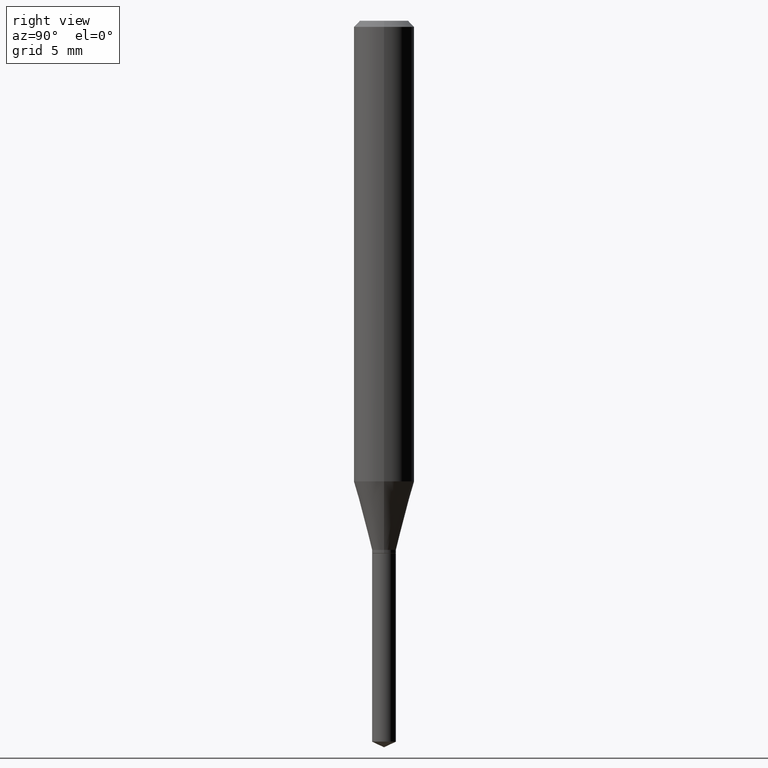
[diagram: clean part render]
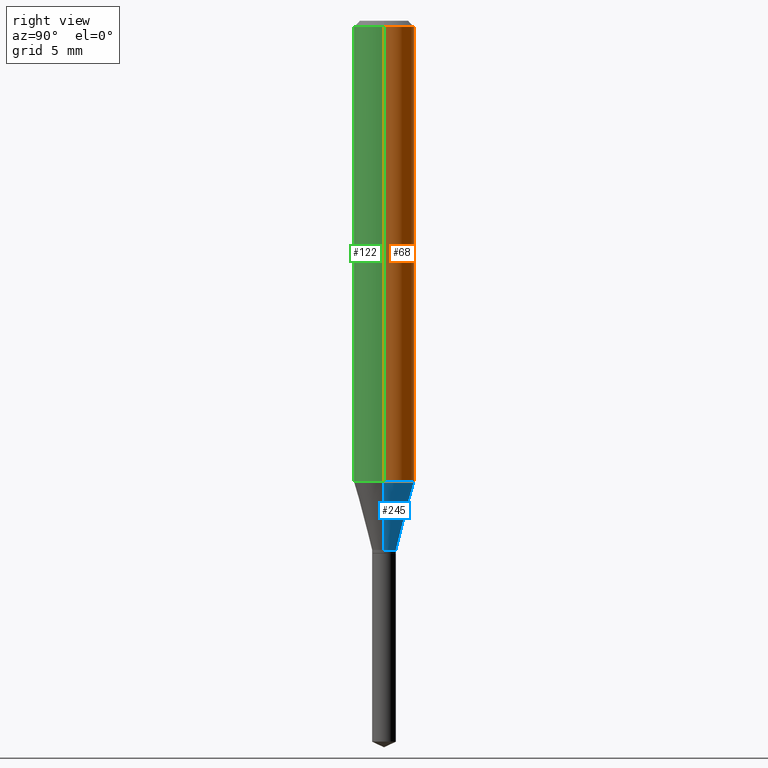
[diagram: same view with three faces highlighted in distinct colors, each labeled with its STEP entity id]
A machine part, right view with three faces highlighted in distinct colors.
Their STEP definitions:

[orange] entity #68 — the highlighted cylindrical surface (edge-blend (fillet) strip) has radius 1.5875 mm, axis along (-0, 0, 1).
#2 = CARTESIAN_POINT ( 'NONE',  ( -0.06250000000000012490, -2.876851681035814887E-15, -0.9511552743931396270 ) ) ;
#8 = VERTEX_POINT ( 'NONE', #2 ) ;
#11 = DIRECTION ( 'NONE',  ( -2.445468806185136597E-29, 3.491481338843145583E-15, 1.000000000000000000 ) ) ;
#13 = DIRECTION ( 'NONE',  ( 1.000000000000000000, -6.982962677686264344E-15, 0.000000000000000000 ) ) ;
#15 = LINE ( 'NONE', #278, #288 ) ;
#32 = DIRECTION ( 'NONE',  ( -2.445468806185136597E-29, 3.491481338843145583E-15, 1.000000000000000000 ) ) ;
#42 = DIRECTION ( 'NONE',  ( 1.000000000000000000, -6.982962677686266711E-15, 4.876176775795935793E-29 ) ) ;
#44 = CARTESIAN_POINT ( 'NONE',  ( -0.06250000000000001388, -1.238202993960645522E-15, -0.01250000000000008916 ) ) ;
#48 = CIRCLE ( 'NONE', #346, 0.06250000000000001388 ) ;
#58 = VERTEX_POINT ( 'NONE', #145 ) ;
#68 = ADVANCED_FACE ( 'NONE', ( #76 ), #227, .T. ) ;
#76 = FACE_OUTER_BOUND ( 'NONE', #284, .T. ) ;
#81 = CARTESIAN_POINT ( 'NONE',  ( 0.06250000000000012490, -3.757376058241271144E-15, -0.9511552743931396270 ) ) ;
#101 = ORIENTED_EDGE ( 'NONE', *, *, #417, .F. ) ;
#102 = DIRECTION ( 'NONE',  ( -2.445468806185136877E-29, 3.491481338843145188E-15, 1.000000000000000000 ) ) ;
#107 = EDGE_CURVE ( 'NONE', #480, #8, #212, .T. ) ;
#127 = CARTESIAN_POINT ( 'NONE',  ( 3.056836007731442729E-31, -4.364351673553962300E-17, -0.01250000000000008916 ) ) ;
#139 = ORIENTED_EDGE ( 'NONE', *, *, #107, .T. ) ;
#144 = DIRECTION ( 'NONE',  ( -2.445468806185136597E-29, 3.491481338843145583E-15, 1.000000000000000000 ) ) ;
#145 = CARTESIAN_POINT ( 'NONE',  ( 0.06250000000000001388, -4.800786840909313294E-16, -0.01250000000000008916 ) ) ;
#156 = AXIS2_PLACEMENT_3D ( 'NONE', #268, #11, #13 ) ;
#182 = AXIS2_PLACEMENT_3D ( 'NONE', #382, #32, #42 ) ;
#210 = VECTOR ( 'NONE', #102, 39.37007874015748143 ) ;
#212 = CIRCLE ( 'NONE', #156, 0.06250000000000012490 ) ;
#213 = VERTEX_POINT ( 'NONE', #44 ) ;
#220 = DIRECTION ( 'NONE',  ( 1.000000000000000000, -6.982962677686265922E-15, 0.000000000000000000 ) ) ;
#227 = CYLINDRICAL_SURFACE ( 'NONE', #182, 0.06250000000000006939 ) ;
#238 = EDGE_CURVE ( 'NONE', #8, #213, #15, .T. ) ;
#268 = CARTESIAN_POINT ( 'NONE',  ( 2.326020553366887075E-29, -3.320940890885878686E-15, -0.9511552743931396270 ) ) ;
#278 = CARTESIAN_POINT ( 'NONE',  ( -0.06250000000000006939, 4.440892098500631092E-16, -3.074334431409319267E-30 ) ) ;
#284 = EDGE_LOOP ( 'NONE', ( #139, #483, #435, #101 ) ) ;
#288 = VECTOR ( 'NONE', #394, 39.37007874015748143 ) ;
#346 = AXIS2_PLACEMENT_3D ( 'NONE', #127, #144, #220 ) ;
#382 = CARTESIAN_POINT ( 'NONE',  ( 0.000000000000000000, 0.000000000000000000, 0.000000000000000000 ) ) ;
#394 = DIRECTION ( 'NONE',  ( -2.445468806185136877E-29, 3.491481338843145188E-15, 1.000000000000000000 ) ) ;
#403 = LINE ( 'NONE', #445, #210 ) ;
#417 = EDGE_CURVE ( 'NONE', #480, #58, #403, .T. ) ;
#435 = ORIENTED_EDGE ( 'NONE', *, *, #455, .F. ) ;
#445 = CARTESIAN_POINT ( 'NONE',  ( 0.06250000000000006939, -4.364351673553921624E-16, 3.047610484872463374E-30 ) ) ;
#455 = EDGE_CURVE ( 'NONE', #58, #213, #48, .T. ) ;
#480 = VERTEX_POINT ( 'NONE', #81 ) ;
#483 = ORIENTED_EDGE ( 'NONE', *, *, #238, .T. ) ;

[blue] entity #245 — the highlighted conical surface has half-angle 15 deg.
#2 = CARTESIAN_POINT ( 'NONE',  ( -0.06250000000000012490, -2.876851681035814887E-15, -0.9511552743931396270 ) ) ;
#8 = VERTEX_POINT ( 'NONE', #2 ) ;
#9 = DIRECTION ( 'NONE',  ( -2.445468806185136597E-29, 3.491481338843145583E-15, 1.000000000000000000 ) ) ;
#11 = DIRECTION ( 'NONE',  ( -2.445468806185136597E-29, 3.491481338843145583E-15, 1.000000000000000000 ) ) ;
#13 = DIRECTION ( 'NONE',  ( 1.000000000000000000, -6.982962677686264344E-15, 0.000000000000000000 ) ) ;
#16 = DIRECTION ( 'NONE',  ( -2.445468806185136597E-29, 3.491481338843145583E-15, 1.000000000000000000 ) ) ;
#17 = VERTEX_POINT ( 'NONE', #262 ) ;
#29 = ORIENTED_EDGE ( 'NONE', *, *, #107, .F. ) ;
#52 = FACE_OUTER_BOUND ( 'NONE', #334, .T. ) ;
#65 = VECTOR ( 'NONE', #407, 39.37007874015747433 ) ;
#77 = CARTESIAN_POINT ( 'NONE',  ( 0.02460000000000000034, -3.986573392691103322E-15, -1.092600000000000016 ) ) ;
#81 = CARTESIAN_POINT ( 'NONE',  ( 0.06250000000000012490, -3.757376058241271144E-15, -0.9511552743931396270 ) ) ;
#87 = LINE ( 'NONE', #151, #425 ) ;
#88 = EDGE_CURVE ( 'NONE', #17, #8, #87, .T. ) ;
#107 = EDGE_CURVE ( 'NONE', #480, #8, #212, .T. ) ;
#116 = DIRECTION ( 'NONE',  ( -0.2588190451025213501, 5.211531920934551042E-15, 0.9659258262890682012 ) ) ;
#132 = CONICAL_SURFACE ( 'NONE', #490, 0.02460000000000000034, 0.2617993877991500740 ) ;
#151 = CARTESIAN_POINT ( 'NONE',  ( -0.02460000000000000034, -3.639998997823036732E-15, -1.092600000000000016 ) ) ;
#154 = CARTESIAN_POINT ( 'NONE',  ( 2.671919217637880494E-29, -3.814792510820021060E-15, -1.092600000000000016 ) ) ;
#156 = AXIS2_PLACEMENT_3D ( 'NONE', #268, #11, #13 ) ;
#159 = EDGE_CURVE ( 'NONE', #174, #17, #409, .T. ) ;
#174 = VERTEX_POINT ( 'NONE', #77 ) ;
#212 = CIRCLE ( 'NONE', #156, 0.06250000000000012490 ) ;
#245 = ADVANCED_FACE ( 'NONE', ( #52 ), #132, .T. ) ;
#247 = ORIENTED_EDGE ( 'NONE', *, *, #88, .T. ) ;
#253 = CARTESIAN_POINT ( 'NONE',  ( 0.02460000000000000034, -3.986573392691103322E-15, -1.092600000000000016 ) ) ;
#262 = CARTESIAN_POINT ( 'NONE',  ( -0.02460000000000000034, -3.652044608442045501E-15, -1.092600000000000016 ) ) ;
#268 = CARTESIAN_POINT ( 'NONE',  ( 2.326020553366887075E-29, -3.320940890885878686E-15, -0.9511552743931396270 ) ) ;
#319 = LINE ( 'NONE', #253, #65 ) ;
#325 = ORIENTED_EDGE ( 'NONE', *, *, #422, .F. ) ;
#334 = EDGE_LOOP ( 'NONE', ( #485, #247, #29, #325 ) ) ;
#358 = CARTESIAN_POINT ( 'NONE',  ( 2.671919217637880494E-29, -3.814792510820021060E-15, -1.092600000000000016 ) ) ;
#407 = DIRECTION ( 'NONE',  ( 0.2588190451025213501, 1.565188264969621968E-15, 0.9659258262890682012 ) ) ;
#409 = CIRCLE ( 'NONE', #467, 0.02460000000000000034 ) ;
#421 = DIRECTION ( 'NONE',  ( 1.000000000000000000, -6.982962677686261977E-15, 0.000000000000000000 ) ) ;
#422 = EDGE_CURVE ( 'NONE', #174, #480, #319, .T. ) ;
#425 = VECTOR ( 'NONE', #116, 39.37007874015747433 ) ;
#431 = DIRECTION ( 'NONE',  ( 1.000000000000000000, -6.982962677686261977E-15, 0.000000000000000000 ) ) ;
#467 = AXIS2_PLACEMENT_3D ( 'NONE', #154, #9, #431 ) ;
#480 = VERTEX_POINT ( 'NONE', #81 ) ;
#485 = ORIENTED_EDGE ( 'NONE', *, *, #159, .T. ) ;
#490 = AXIS2_PLACEMENT_3D ( 'NONE', #358, #16, #421 ) ;

[green] entity #122 — the highlighted cylindrical surface (edge-blend (fillet) strip) has radius 1.5875 mm, axis along (-0, 0, 1).
#2 = CARTESIAN_POINT ( 'NONE',  ( -0.06250000000000012490, -2.876851681035814887E-15, -0.9511552743931396270 ) ) ;
#8 = VERTEX_POINT ( 'NONE', #2 ) ;
#15 = LINE ( 'NONE', #278, #288 ) ;
#44 = CARTESIAN_POINT ( 'NONE',  ( -0.06250000000000001388, -1.238202993960645522E-15, -0.01250000000000008916 ) ) ;
#49 = DIRECTION ( 'NONE',  ( -2.445468806185136597E-29, 3.491481338843145583E-15, 1.000000000000000000 ) ) ;
#58 = VERTEX_POINT ( 'NONE', #145 ) ;
#62 = ORIENTED_EDGE ( 'NONE', *, *, #381, .T. ) ;
#81 = CARTESIAN_POINT ( 'NONE',  ( 0.06250000000000012490, -3.757376058241271144E-15, -0.9511552743931396270 ) ) ;
#102 = DIRECTION ( 'NONE',  ( -2.445468806185136877E-29, 3.491481338843145188E-15, 1.000000000000000000 ) ) ;
#121 = ORIENTED_EDGE ( 'NONE', *, *, #238, .F. ) ;
#122 = ADVANCED_FACE ( 'NONE', ( #158 ), #233, .T. ) ;
#135 = DIRECTION ( 'NONE',  ( 1.000000000000000000, -6.982962677686264344E-15, 0.000000000000000000 ) ) ;
#145 = CARTESIAN_POINT ( 'NONE',  ( 0.06250000000000001388, -4.800786840909313294E-16, -0.01250000000000008916 ) ) ;
#158 = FACE_OUTER_BOUND ( 'NONE', #371, .T. ) ;
#197 = EDGE_CURVE ( 'NONE', #213, #58, #355, .T. ) ;
#210 = VECTOR ( 'NONE', #102, 39.37007874015748143 ) ;
#213 = VERTEX_POINT ( 'NONE', #44 ) ;
#223 = AXIS2_PLACEMENT_3D ( 'NONE', #463, #466, #235 ) ;
#228 = DIRECTION ( 'NONE',  ( 1.000000000000000000, -6.982962677686265922E-15, 0.000000000000000000 ) ) ;
#233 = CYLINDRICAL_SURFACE ( 'NONE', #223, 0.06250000000000006939 ) ;
#235 = DIRECTION ( 'NONE',  ( 1.000000000000000000, -6.982962677686266711E-15, 4.876176775795935793E-29 ) ) ;
#238 = EDGE_CURVE ( 'NONE', #8, #213, #15, .T. ) ;
#243 = ORIENTED_EDGE ( 'NONE', *, *, #417, .T. ) ;
#249 = DIRECTION ( 'NONE',  ( -2.445468806185136597E-29, 3.491481338843145583E-15, 1.000000000000000000 ) ) ;
#263 = CIRCLE ( 'NONE', #280, 0.06250000000000012490 ) ;
#278 = CARTESIAN_POINT ( 'NONE',  ( -0.06250000000000006939, 4.440892098500631092E-16, -3.074334431409319267E-30 ) ) ;
#280 = AXIS2_PLACEMENT_3D ( 'NONE', #399, #249, #135 ) ;
#288 = VECTOR ( 'NONE', #394, 39.37007874015748143 ) ;
#355 = CIRCLE ( 'NONE', #458, 0.06250000000000001388 ) ;
#366 = ORIENTED_EDGE ( 'NONE', *, *, #197, .F. ) ;
#371 = EDGE_LOOP ( 'NONE', ( #121, #62, #243, #366 ) ) ;
#381 = EDGE_CURVE ( 'NONE', #8, #480, #263, .T. ) ;
#391 = CARTESIAN_POINT ( 'NONE',  ( 3.056836007731442729E-31, -4.364351673553962300E-17, -0.01250000000000008916 ) ) ;
#394 = DIRECTION ( 'NONE',  ( -2.445468806185136877E-29, 3.491481338843145188E-15, 1.000000000000000000 ) ) ;
#399 = CARTESIAN_POINT ( 'NONE',  ( 2.326020553366887075E-29, -3.320940890885878686E-15, -0.9511552743931396270 ) ) ;
#403 = LINE ( 'NONE', #445, #210 ) ;
#417 = EDGE_CURVE ( 'NONE', #480, #58, #403, .T. ) ;
#445 = CARTESIAN_POINT ( 'NONE',  ( 0.06250000000000006939, -4.364351673553921624E-16, 3.047610484872463374E-30 ) ) ;
#458 = AXIS2_PLACEMENT_3D ( 'NONE', #391, #49, #228 ) ;
#463 = CARTESIAN_POINT ( 'NONE',  ( 0.000000000000000000, 0.000000000000000000, 0.000000000000000000 ) ) ;
#466 = DIRECTION ( 'NONE',  ( -2.445468806185136597E-29, 3.491481338843145583E-15, 1.000000000000000000 ) ) ;
#480 = VERTEX_POINT ( 'NONE', #81 ) ;